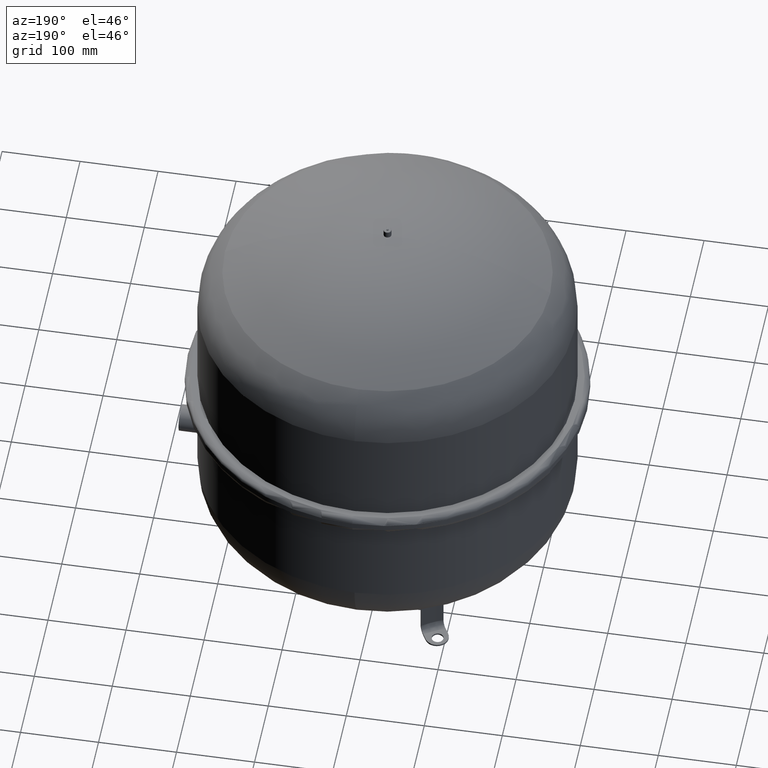
[diagram: clean part render]
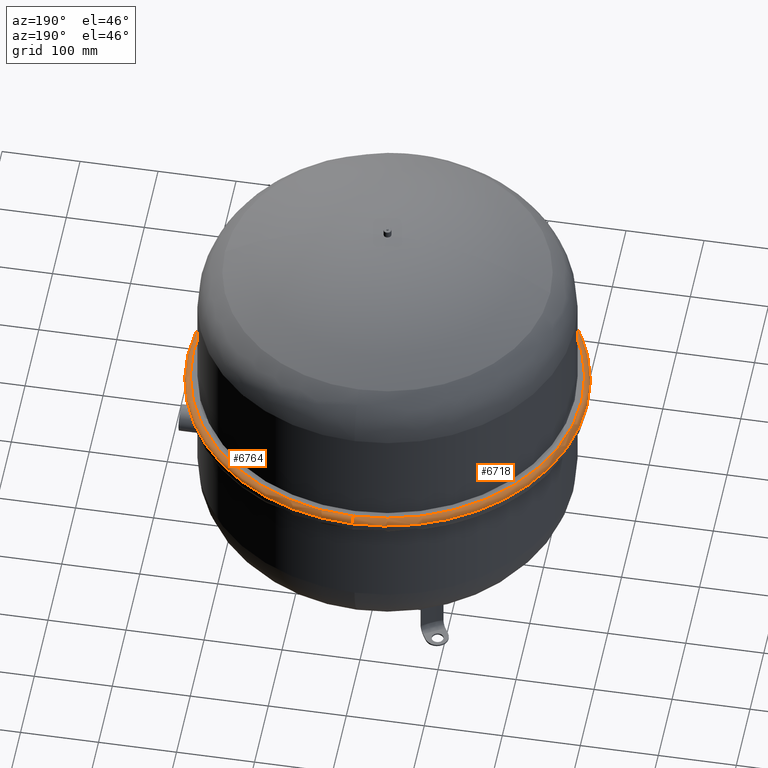
[diagram: same view with one multi-face feature highlighted, each face labeled with its STEP entity id]
A machine part, auxiliary view. The highlighted faces form ONE feature: a constant-radius fillet chain: 2 tangent blend faces with common blend radius 7 mm. The faces share edges in the B-rep.
Their STEP definitions:
[1] entity #6764 (Torus):
#6640=CARTESIAN_POINT('',(256.0,-3.157954E-014,290.25));
#6641=VERTEX_POINT('',#6640);
#6648=CARTESIAN_POINT('',(-3.134992E-014,-256.00000000000006,290.25));
#6649=VERTEX_POINT('',#6648);
#6650=CARTESIAN_POINT('',(0.0,-2.296213E-016,290.25));
#6651=DIRECTION('',(0.0,0.0,-1.0));
#6652=DIRECTION('',(-1.0,0.0,0.0));
#6653=AXIS2_PLACEMENT_3D('',#6650,#6651,#6652);
#6654=CIRCLE('',#6653,256.00000000000006);
#6655=EDGE_CURVE('',#6641,#6649,#6654,.T.);
#6672=CARTESIAN_POINT('',(0.0,256.00000000000006,290.25));
#6673=VERTEX_POINT('',#6672);
#6674=CARTESIAN_POINT('',(0.0,249.00000000000003,297.25));
#6675=VERTEX_POINT('',#6674);
#6676=CARTESIAN_POINT('',(0.0,249.00000000000003,290.25));
#6677=DIRECTION('',(1.0,0.0,0.0));
#6678=DIRECTION('',(0.0,1.0,0.0));
#6679=AXIS2_PLACEMENT_3D('',#6676,#6677,#6678);
#6680=CIRCLE('',#6679,7.000000000000001);
#6681=EDGE_CURVE('',#6673,#6675,#6680,.T.);
#6691=CARTESIAN_POINT('',(-3.049270E-014,-249.00000000000003,297.25));
#6692=VERTEX_POINT('',#6691);
#6693=CARTESIAN_POINT('',(-3.049270E-014,-249.00000000000003,290.25));
#6694=DIRECTION('',(-1.0,0.0,0.0));
#6695=DIRECTION('',(0.0,-1.0,0.0));
#6696=AXIS2_PLACEMENT_3D('',#6693,#6694,#6695);
#6697=CIRCLE('',#6696,7.000000000000001);
#6698=EDGE_CURVE('',#6649,#6692,#6697,.T.);
#6726=CARTESIAN_POINT('',(0.0,-6.582477E-016,297.25));
#6727=DIRECTION('',(0.0,0.0,-1.0));
#6728=DIRECTION('',(-1.0,0.0,0.0));
#6729=AXIS2_PLACEMENT_3D('',#6726,#6727,#6728);
#6730=CIRCLE('',#6729,249.00000000000003);
#6731=EDGE_CURVE('',#6675,#6692,#6730,.T.);
#6746=CARTESIAN_POINT('',(0.0,-2.296213E-016,290.25));
#6747=DIRECTION('',(0.0,6.123234E-017,-1.0));
#6748=DIRECTION('',(0.0,1.0,0.0));
#6749=AXIS2_PLACEMENT_3D('',#6746,#6747,#6748);
#6750=TOROIDAL_SURFACE('',#6749,249.00000000000003,7.000000000000001);
#6751=ORIENTED_EDGE('',*,*,#6681,.T.);
#6752=ORIENTED_EDGE('',*,*,#6731,.T.);
#6753=ORIENTED_EDGE('',*,*,#6698,.F.);
#6754=ORIENTED_EDGE('',*,*,#6655,.F.);
#6755=CARTESIAN_POINT('',(0.0,-2.296213E-016,290.25));
#6756=DIRECTION('',(0.0,0.0,-1.0));
#6757=DIRECTION('',(-1.0,0.0,0.0));
#6758=AXIS2_PLACEMENT_3D('',#6755,#6756,#6757);
#6759=CIRCLE('',#6758,256.00000000000006);
#6760=EDGE_CURVE('',#6673,#6641,#6759,.T.);
#6761=ORIENTED_EDGE('',*,*,#6760,.F.);
#6762=EDGE_LOOP('',(#6751,#6752,#6753,#6754,#6761));
#6763=FACE_OUTER_BOUND('',#6762,.T.);
#6764=ADVANCED_FACE('',(#6763),#6750,.T.);
[2] entity #6718 (Torus):
#6622=CARTESIAN_POINT('',(-256.00000000000006,-2.296213E-016,290.25));
#6623=VERTEX_POINT('',#6622);
#6648=CARTESIAN_POINT('',(-3.134992E-014,-256.00000000000006,290.25));
#6649=VERTEX_POINT('',#6648);
#6657=CARTESIAN_POINT('',(0.0,-2.296213E-016,290.25));
#6658=DIRECTION('',(0.0,0.0,-1.0));
#6659=DIRECTION('',(-1.0,0.0,0.0));
#6660=AXIS2_PLACEMENT_3D('',#6657,#6658,#6659);
#6661=CIRCLE('',#6660,256.00000000000006);
#6662=EDGE_CURVE('',#6649,#6623,#6661,.T.);
#6667=CARTESIAN_POINT('',(0.0,-2.296213E-016,290.25));
#6668=DIRECTION('',(0.0,6.123234E-017,-1.0));
#6669=DIRECTION('',(0.0,1.0,0.0));
#6670=AXIS2_PLACEMENT_3D('',#6667,#6668,#6669);
#6671=TOROIDAL_SURFACE('',#6670,249.00000000000003,7.000000000000001);
#6672=CARTESIAN_POINT('',(0.0,256.00000000000006,290.25));
#6673=VERTEX_POINT('',#6672);
#6674=CARTESIAN_POINT('',(0.0,249.00000000000003,297.25));
#6675=VERTEX_POINT('',#6674);
#6676=CARTESIAN_POINT('',(0.0,249.00000000000003,290.25));
#6677=DIRECTION('',(1.0,0.0,0.0));
#6678=DIRECTION('',(0.0,1.0,0.0));
#6679=AXIS2_PLACEMENT_3D('',#6676,#6677,#6678);
#6680=CIRCLE('',#6679,7.000000000000001);
#6681=EDGE_CURVE('',#6673,#6675,#6680,.T.);
#6682=ORIENTED_EDGE('',*,*,#6681,.F.);
#6683=CARTESIAN_POINT('',(0.0,-2.296213E-016,290.25));
#6684=DIRECTION('',(0.0,0.0,-1.0));
#6685=DIRECTION('',(-1.0,0.0,0.0));
#6686=AXIS2_PLACEMENT_3D('',#6683,#6684,#6685);
#6687=CIRCLE('',#6686,256.00000000000006);
#6688=EDGE_CURVE('',#6623,#6673,#6687,.T.);
#6689=ORIENTED_EDGE('',*,*,#6688,.F.);
#6690=ORIENTED_EDGE('',*,*,#6662,.F.);
#6691=CARTESIAN_POINT('',(-3.049270E-014,-249.00000000000003,297.25));
#6692=VERTEX_POINT('',#6691);
#6693=CARTESIAN_POINT('',(-3.049270E-014,-249.00000000000003,290.25));
#6694=DIRECTION('',(-1.0,0.0,0.0));
#6695=DIRECTION('',(0.0,-1.0,0.0));
#6696=AXIS2_PLACEMENT_3D('',#6693,#6694,#6695);
#6697=CIRCLE('',#6696,7.000000000000001);
#6698=EDGE_CURVE('',#6649,#6692,#6697,.T.);
#6699=ORIENTED_EDGE('',*,*,#6698,.T.);
#6700=CARTESIAN_POINT('',(-249.00000000000003,-6.582477E-016,297.25));
#6701=VERTEX_POINT('',#6700);
#6702=CARTESIAN_POINT('',(0.0,-6.582477E-016,297.25));
#6703=DIRECTION('',(0.0,0.0,-1.0));
#6704=DIRECTION('',(-1.0,0.0,0.0));
#6705=AXIS2_PLACEMENT_3D('',#6702,#6703,#6704);
#6706=CIRCLE('',#6705,249.00000000000003);
#6707=EDGE_CURVE('',#6692,#6701,#6706,.T.);
#6708=ORIENTED_EDGE('',*,*,#6707,.T.);
#6709=CARTESIAN_POINT('',(0.0,-6.582477E-016,297.25));
#6710=DIRECTION('',(0.0,0.0,-1.0));
#6711=DIRECTION('',(-1.0,0.0,0.0));
#6712=AXIS2_PLACEMENT_3D('',#6709,#6710,#6711);
#6713=CIRCLE('',#6712,249.00000000000003);
#6714=EDGE_CURVE('',#6701,#6675,#6713,.T.);
#6715=ORIENTED_EDGE('',*,*,#6714,.T.);
#6716=EDGE_LOOP('',(#6682,#6689,#6690,#6699,#6708,#6715));
#6717=FACE_OUTER_BOUND('',#6716,.T.);
#6718=ADVANCED_FACE('',(#6717),#6671,.T.);